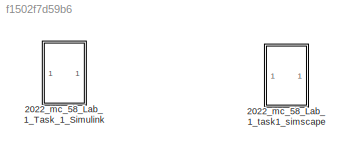
MODEL slx_f1502f7d59b6
KIND model
CONFIG AbsTol = auto
CONFIG EnableMultiTasking = off
CONFIG FixedStep = auto
CONFIG MaxStep = auto
CONFIG MinStep = auto
CONFIG RelTol = 1e-3
CONFIG SampleTimeConstraint = Unconstrained
CONFIG SolverName = VariableStepAuto
CONFIG StartTime = 0.0
CONFIG StopTime = 10.0
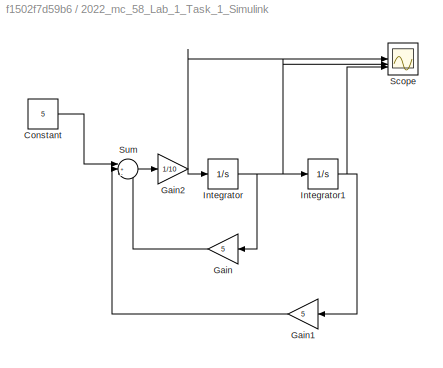
BLOCK [SubSystem] 2022_mc_58_Lab_1_Task_1_Simulink
BLOCK [Constant] 2022_mc_58_Lab_1_Task_1_Simulink/Constant
  Value = 5
BLOCK [Gain] 2022_mc_58_Lab_1_Task_1_Simulink/Gain
  Gain = 5
  NameLocation = top
BLOCK [Gain] 2022_mc_58_Lab_1_Task_1_Simulink/Gain1
  Gain = 5
  NameLocation = top
BLOCK [Gain] 2022_mc_58_Lab_1_Task_1_Simulink/Gain2
  Gain = 1/10
BLOCK [Integrator] 2022_mc_58_Lab_1_Task_1_Simulink/Integrator
BLOCK [Integrator] 2022_mc_58_Lab_1_Task_1_Simulink/Integrator1
BLOCK [Scope] 2022_mc_58_Lab_1_Task_1_Simulink/Scope
  Floating = off
  NumInputPorts = 3
  ScopeSpecificationString = Simulink.scopes.TimeScopeBlockCfg('CurrentConfiguration', extmgr.ConfigurationSet(extmgr.Configuration('Core','General UI',true),extmgr.Configuration('Core','Source UI',true),extmgr.Configuration('Sources','WiredSimulink',true),extmgr.Configuration('Visuals','Time Domain',true,'SerializedDisplays',{struct('MinYLimReal','-0.38851','MaxYLimReal','1.49253','YLabelReal','','MinYLimMag','0.00000','MaxY...<+1500ch>
BLOCK [Sum] 2022_mc_58_Lab_1_Task_1_Simulink/Sum
  Inputs = |+--
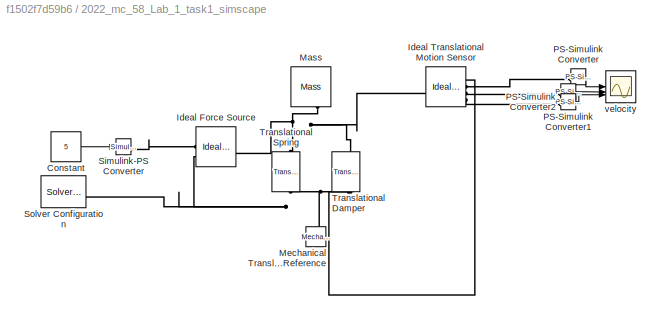
BLOCK [SubSystem] 2022_mc_58_Lab_1_task1_simscape
  Commented = on
BLOCK [Constant] 2022_mc_58_Lab_1_task1_simscape/Constant
  Value = 5
BLOCK [Reference] 2022_mc_58_Lab_1_task1_simscape/Ideal Force Source  REF=fl_lib/Mechanical/Mechanical Sources/Ideal Force Source
  SourceBlock = fl_lib/Mechanical/Mechanical Sources/Ideal Force Source
  SourceType = Ideal Force Source
BLOCK [Reference] 2022_mc_58_Lab_1_task1_simscape/Ideal Translational Motion Sensor  REF=fl_lib/Mechanical/Mechanical Sensors/Ideal Translational
Motion Sensor
  SourceBlock = fl_lib/Mechanical/Mechanical Sensors/Ideal Translational\nMotion Sensor
  SourceType = Ideal Translational\nMotion Sensor
BLOCK [Reference] 2022_mc_58_Lab_1_task1_simscape/Mass  REF=fl_lib/Mechanical/Translational
Elements/Mass
  NameLocation = left
  SourceBlock = fl_lib/Mechanical/Translational\nElements/Mass
  SourceType = Mass
BLOCK [Reference] 2022_mc_58_Lab_1_task1_simscape/Mechanical Translational Reference  REF=fl_lib/Mechanical/Translational
Elements/Mechanical
Translational
Reference
  NameLocation = right
  SourceBlock = fl_lib/Mechanical/Translational\nElements/Mechanical\nTranslational\nReference
  SourceType = Mechanical\nTranslational\nReference
BLOCK [Reference] 2022_mc_58_Lab_1_task1_simscape/PS-Simulink Converter  REF=nesl_utility/PS-Simulink
Converter
  SourceBlock = nesl_utility/PS-Simulink\nConverter
  SourceType = PS-Simulink\nConverter
BLOCK [Reference] 2022_mc_58_Lab_1_task1_simscape/PS-Simulink Converter1  REF=nesl_utility/PS-Simulink
Converter
  SourceBlock = nesl_utility/PS-Simulink\nConverter
  SourceType = PS-Simulink\nConverter
BLOCK [Reference] 2022_mc_58_Lab_1_task1_simscape/PS-Simulink Converter2  REF=nesl_utility/PS-Simulink
Converter
  SourceBlock = nesl_utility/PS-Simulink\nConverter
  SourceType = PS-Simulink\nConverter
BLOCK [Reference] 2022_mc_58_Lab_1_task1_simscape/Simulink-PS Converter  REF=nesl_utility/Simulink-PS
Converter
  SourceBlock = nesl_utility/Simulink-PS\nConverter
  SourceType = Simulink-PS\nConverter
BLOCK [Reference] 2022_mc_58_Lab_1_task1_simscape/Solver Configuration  REF=nesl_utility/Solver
Configuration
  SourceBlock = nesl_utility/Solver\nConfiguration
  SourceType = Solver\nConfiguration
BLOCK [Reference] 2022_mc_58_Lab_1_task1_simscape/Translational Damper  REF=fl_lib/Mechanical/Translational
Elements/Translational Damper
  NameLocation = left
  SourceBlock = fl_lib/Mechanical/Translational\nElements/Translational Damper
  SourceType = Translational Damper
BLOCK [Reference] 2022_mc_58_Lab_1_task1_simscape/Translational Spring  REF=fl_lib/Mechanical/Translational
Elements/Translational Spring
  NameLocation = left
  SourceBlock = fl_lib/Mechanical/Translational\nElements/Translational Spring
  SourceType = Translational Spring
BLOCK [Scope] 2022_mc_58_Lab_1_task1_simscape/velocity
  Floating = off
  NumInputPorts = 3
  ScopeSpecificationString = Simulink.scopes.TimeScopeBlockCfg('CurrentConfiguration', extmgr.ConfigurationSet(extmgr.Configuration('Core','General UI',true,'FigureColor',[0 0 0]),extmgr.Configuration('Core','Source UI',true),extmgr.Configuration('Sources','WiredSimulink',true,'DataLoggingVariableName','ScopeData1'),extmgr.Configuration('Visuals','Time Domain',true,'InputProcessing','FrameProcessing','PlotType','Line','Serial...<+1626ch>
LINE 2022_mc_58_Lab_1_Task_1_Simulink/Constant:1 -> 2022_mc_58_Lab_1_Task_1_Simulink/Sum:1
LINE 2022_mc_58_Lab_1_Task_1_Simulink/Gain1:1 -> 2022_mc_58_Lab_1_Task_1_Simulink/Sum:2
NET 2022_mc_58_Lab_1_Task_1_Simulink/Gain2:1 -> 2022_mc_58_Lab_1_Task_1_Simulink/Integrator:1, 2022_mc_58_Lab_1_Task_1_Simulink/Scope:1
LINE 2022_mc_58_Lab_1_Task_1_Simulink/Gain:1 -> 2022_mc_58_Lab_1_Task_1_Simulink/Sum:3
NET 2022_mc_58_Lab_1_Task_1_Simulink/Integrator1:1 -> 2022_mc_58_Lab_1_Task_1_Simulink/Gain1:1, 2022_mc_58_Lab_1_Task_1_Simulink/Scope:3
NET 2022_mc_58_Lab_1_Task_1_Simulink/Integrator:1 -> 2022_mc_58_Lab_1_Task_1_Simulink/Gain:1, 2022_mc_58_Lab_1_Task_1_Simulink/Integrator1:1, 2022_mc_58_Lab_1_Task_1_Simulink/Scope:2
LINE 2022_mc_58_Lab_1_Task_1_Simulink/Sum:1 -> 2022_mc_58_Lab_1_Task_1_Simulink/Gain2:1
LINE 2022_mc_58_Lab_1_task1_simscape/Constant:1 -> 2022_mc_58_Lab_1_task1_simscape/Simulink-PS Converter:1
LINE 2022_mc_58_Lab_1_task1_simscape/PS-Simulink Converter1:1 -> 2022_mc_58_Lab_1_task1_simscape/velocity:2
LINE 2022_mc_58_Lab_1_task1_simscape/PS-Simulink Converter2:1 -> 2022_mc_58_Lab_1_task1_simscape/velocity:3
LINE 2022_mc_58_Lab_1_task1_simscape/PS-Simulink Converter:1 -> 2022_mc_58_Lab_1_task1_simscape/velocity:1
PNET net1: 2022_mc_58_Lab_1_task1_simscape/Ideal Force Source:LConn1 -- 2022_mc_58_Lab_1_task1_simscape/Ideal Translational Motion Sensor:LConn1 -- 2022_mc_58_Lab_1_task1_simscape/Mass:LConn1 -- 2022_mc_58_Lab_1_task1_simscape/Translational Damper:LConn1 -- 2022_mc_58_Lab_1_task1_simscape/Translational Spring:LConn1
PLINE 2022_mc_58_Lab_1_task1_simscape/Ideal Force Source:RConn1 -- 2022_mc_58_Lab_1_task1_simscape/Simulink-PS Converter:RConn1
PNET net2: 2022_mc_58_Lab_1_task1_simscape/Ideal Force Source:RConn2 -- 2022_mc_58_Lab_1_task1_simscape/Ideal Translational Motion Sensor:RConn1 -- 2022_mc_58_Lab_1_task1_simscape/Mechanical Translational Reference:LConn1 -- 2022_mc_58_Lab_1_task1_simscape/Solver Configuration:RConn1 -- 2022_mc_58_Lab_1_task1_simscape/Translational Damper:RConn1 -- 2022_mc_58_Lab_1_task1_simscape/Translational Spring:RConn1
PLINE 2022_mc_58_Lab_1_task1_simscape/Ideal Translational Motion Sensor:RConn2 -- 2022_mc_58_Lab_1_task1_simscape/PS-Simulink Converter:LConn1
PLINE 2022_mc_58_Lab_1_task1_simscape/Ideal Translational Motion Sensor:RConn3 -- 2022_mc_58_Lab_1_task1_simscape/PS-Simulink Converter1:LConn1
PLINE 2022_mc_58_Lab_1_task1_simscape/Ideal Translational Motion Sensor:RConn4 -- 2022_mc_58_Lab_1_task1_simscape/PS-Simulink Converter2:LConn1
note: NET lines group one-source signal fan-out (src -> all destinations, sorted); 1:1 wires keep LINE; PNET lines group multi-terminal physical nets as a canonical sorted terminal list (undirected conserving connections); 2-terminal nets keep the pairwise PLINE form
